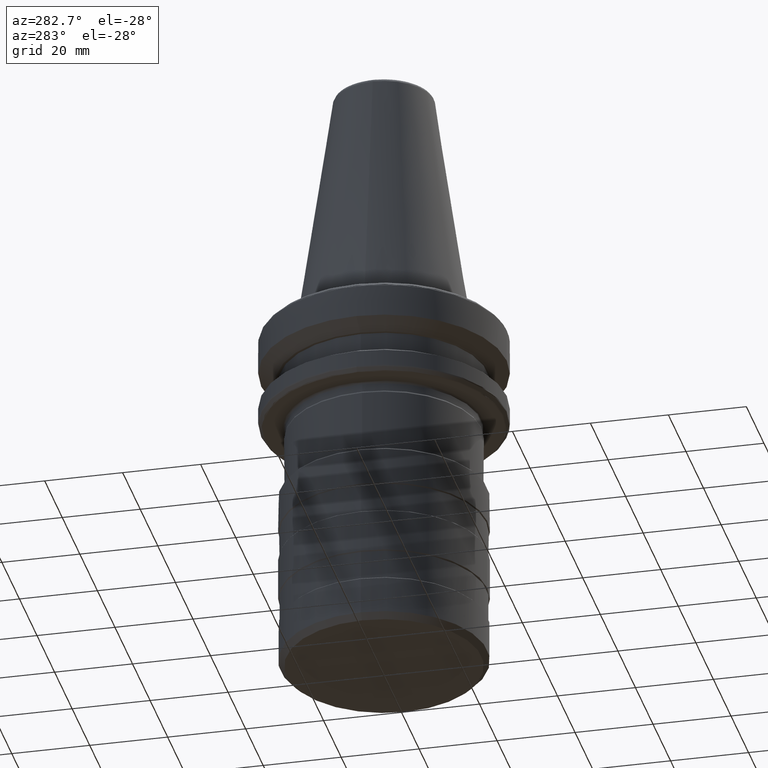
[diagram: clean part render]
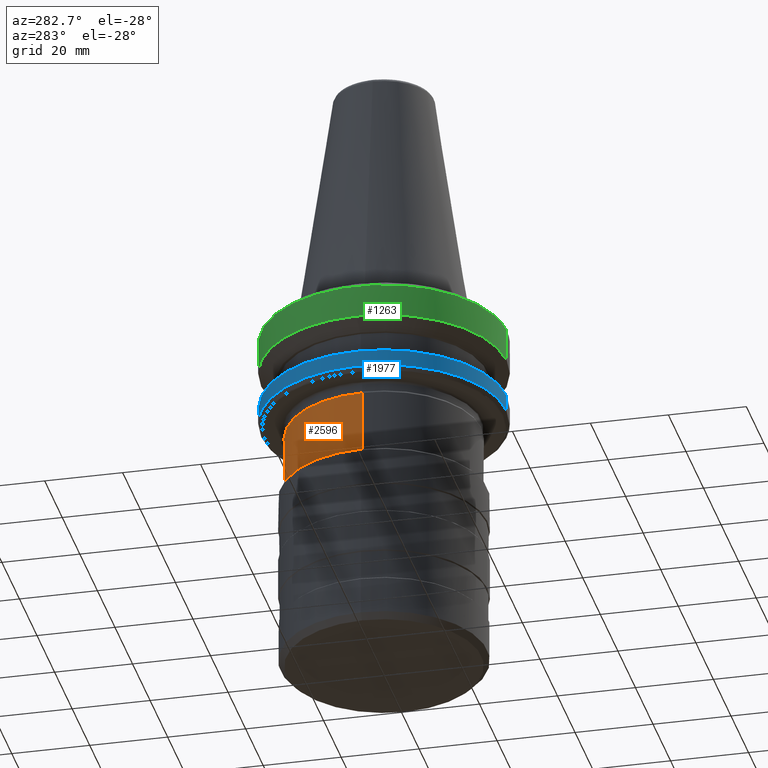
[diagram: same view with three faces highlighted in distinct colors, each labeled with its STEP entity id]
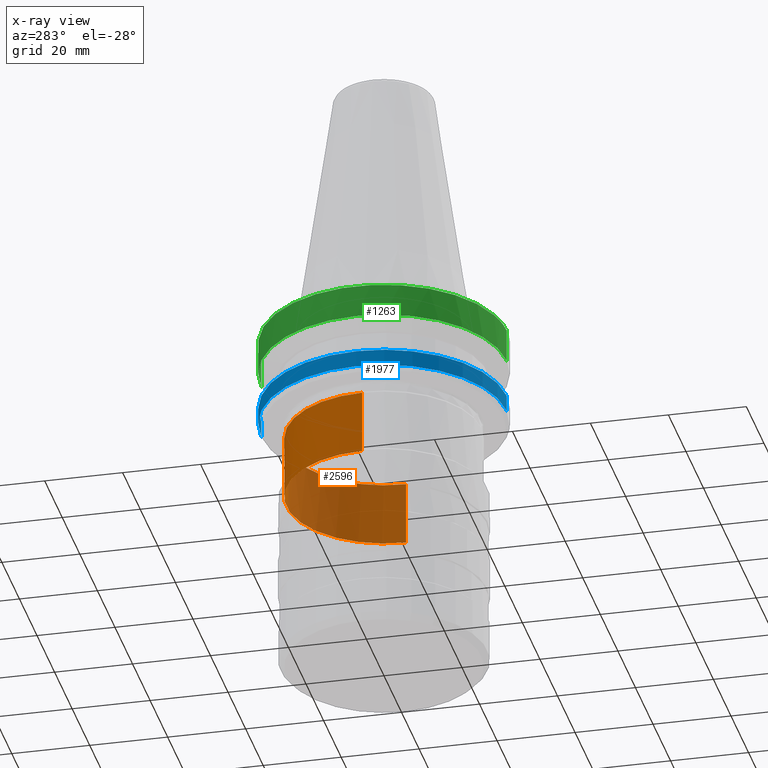
[diagram: x-ray of the same camera — body ghosted, the three highlighted faces saturated]
A machine part, auxiliary view with three faces highlighted in distinct colors.
The next image is the same camera in x-ray (body ghosted, the three faces saturated) — at least one of them is partly hidden behind the body in this view.
Their STEP definitions:

[orange] entity #2596 — the highlighted cylindrical surface (partial cylindrical patch) has radius 25 mm, axis along (0, 0, 1).
#31 = FACE_OUTER_BOUND ( 'NONE', #2016, .T. ) ;
#154 = AXIS2_PLACEMENT_3D ( 'NONE', #2777, #1375, #3063 ) ;
#248 = CARTESIAN_POINT ( 'NONE',  ( -25.00000000000000000, 3.061616997868383000E-015, -46.50000000000000000 ) ) ;
#292 = EDGE_CURVE ( 'NONE', #542, #1401, #1635, .T. ) ;
#347 = CIRCLE ( 'NONE', #154, 25.00000000000000400 ) ;
#421 = DIRECTION ( 'NONE',  ( -1.000000000000000000, -8.881784197001252300E-016, 0.0000000000000000000 ) ) ;
#423 = DIRECTION ( 'NONE',  ( -0.0000000000000000000, -0.0000000000000000000, 1.000000000000000000 ) ) ;
#426 = CARTESIAN_POINT ( 'NONE',  ( 0.0000000000000000000, 0.0000000000000000000, -30.00000000000000000 ) ) ;
#539 = AXIS2_PLACEMENT_3D ( 'NONE', #3037, #2125, #2666 ) ;
#542 = VERTEX_POINT ( 'NONE', #2483 ) ;
#556 = ORIENTED_EDGE ( 'NONE', *, *, #2383, .F. ) ;
#576 = CARTESIAN_POINT ( 'NONE',  ( 0.0000000000000000000, 25.00000000000000400, -30.00000000000000000 ) ) ;
#666 = ORIENTED_EDGE ( 'NONE', *, *, #2978, .F. ) ;
#728 = VERTEX_POINT ( 'NONE', #1129 ) ;
#844 = AXIS2_PLACEMENT_3D ( 'NONE', #426, #423, #421 ) ;
#975 = DIRECTION ( 'NONE',  ( 0.0000000000000000000, 0.0000000000000000000, 1.000000000000000000 ) ) ;
#981 = VECTOR ( 'NONE', #1184, 1000.000000000000000 ) ;
#1046 = AXIS2_PLACEMENT_3D ( 'NONE', #2565, #975, #2861 ) ;
#1129 = CARTESIAN_POINT ( 'NONE',  ( -25.00000000000000700, 3.061616997868383800E-015, -30.00000000000000000 ) ) ;
#1154 = VERTEX_POINT ( 'NONE', #576 ) ;
#1184 = DIRECTION ( 'NONE',  ( 0.0000000000000000000, 0.0000000000000000000, 1.000000000000000000 ) ) ;
#1206 = EDGE_CURVE ( 'NONE', #1154, #728, #1642, .T. ) ;
#1375 = DIRECTION ( 'NONE',  ( -0.0000000000000000000, -0.0000000000000000000, 1.000000000000000000 ) ) ;
#1401 = VERTEX_POINT ( 'NONE', #248 ) ;
#1517 = VERTEX_POINT ( 'NONE', #2209 ) ;
#1519 = ORIENTED_EDGE ( 'NONE', *, *, #1206, .F. ) ;
#1555 = ORIENTED_EDGE ( 'NONE', *, *, #2412, .T. ) ;
#1635 = CIRCLE ( 'NONE', #539, 25.00000000000000000 ) ;
#1642 = CIRCLE ( 'NONE', #844, 25.00000000000000400 ) ;
#1964 = LINE ( 'NONE', #2433, #2527 ) ;
#2016 = EDGE_LOOP ( 'NONE', ( #2345, #1555, #1519, #556, #666 ) ) ;
#2022 = CYLINDRICAL_SURFACE ( 'NONE', #1046, 25.00000000000000000 ) ;
#2125 = DIRECTION ( 'NONE',  ( 0.0000000000000000000, 0.0000000000000000000, 1.000000000000000000 ) ) ;
#2198 = LINE ( 'NONE', #2512, #981 ) ;
#2209 = CARTESIAN_POINT ( 'NONE',  ( 25.00000000000000700, 0.0000000000000000000, -30.00000000000000000 ) ) ;
#2345 = ORIENTED_EDGE ( 'NONE', *, *, #292, .T. ) ;
#2383 = EDGE_CURVE ( 'NONE', #1517, #1154, #347, .T. ) ;
#2412 = EDGE_CURVE ( 'NONE', #1401, #728, #2198, .T. ) ;
#2433 = CARTESIAN_POINT ( 'NONE',  ( 25.00000000000000000, 0.0000000000000000000, -46.50000000000000000 ) ) ;
#2483 = CARTESIAN_POINT ( 'NONE',  ( 25.00000000000000000, 0.0000000000000000000, -46.50000000000000000 ) ) ;
#2512 = CARTESIAN_POINT ( 'NONE',  ( -25.00000000000000000, 3.061616997868383000E-015, -46.50000000000000000 ) ) ;
#2527 = VECTOR ( 'NONE', #2726, 1000.000000000000000 ) ;
#2565 = CARTESIAN_POINT ( 'NONE',  ( 0.0000000000000000000, 0.0000000000000000000, -46.50000000000000000 ) ) ;
#2596 = ADVANCED_FACE ( 'NONE', ( #31 ), #2022, .T. ) ;
#2666 = DIRECTION ( 'NONE',  ( 1.000000000000000000, 0.0000000000000000000, 0.0000000000000000000 ) ) ;
#2726 = DIRECTION ( 'NONE',  ( 0.0000000000000000000, 0.0000000000000000000, 1.000000000000000000 ) ) ;
#2777 = CARTESIAN_POINT ( 'NONE',  ( 0.0000000000000000000, 0.0000000000000000000, -30.00000000000000000 ) ) ;
#2861 = DIRECTION ( 'NONE',  ( 1.000000000000000000, 0.0000000000000000000, 0.0000000000000000000 ) ) ;
#2978 = EDGE_CURVE ( 'NONE', #542, #1517, #1964, .T. ) ;
#3037 = CARTESIAN_POINT ( 'NONE',  ( 0.0000000000000000000, 0.0000000000000000000, -46.50000000000000000 ) ) ;
#3063 = DIRECTION ( 'NONE',  ( -1.000000000000000000, 0.0000000000000000000, 0.0000000000000000000 ) ) ;

[blue] entity #1977 — the highlighted cylindrical surface (partial cylindrical patch) has radius 31.5 mm, axis along (0, -0, 1).
#94 = AXIS2_PLACEMENT_3D ( 'NONE', #505, #2128, #734 ) ;
#99 = DIRECTION ( 'NONE',  ( 0.0000000000000000000, -5.507058653894625200E-017, 1.000000000000000000 ) ) ;
#104 = CYLINDRICAL_SURFACE ( 'NONE', #2450, 31.50000000000000000 ) ;
#165 = DIRECTION ( 'NONE',  ( 0.0000000000000000000, -1.000000000000000000, 0.0000000000000000000 ) ) ;
#185 = FACE_OUTER_BOUND ( 'NONE', #199, .T. ) ;
#199 = EDGE_LOOP ( 'NONE', ( #2286, #2180, #1988, #1911, #1398, #1323 ) ) ;
#302 = DIRECTION ( 'NONE',  ( 0.0000000000000000000, -1.000000000000000000, 0.0000000000000000000 ) ) ;
#303 = DIRECTION ( 'NONE',  ( 0.0000000000000000000, -5.507058653894625200E-017, 1.000000000000000000 ) ) ;
#310 = CARTESIAN_POINT ( 'NONE',  ( 0.0000000000000000000, -1.514377057461634400E-027, -25.83431457497250200 ) ) ;
#323 = VERTEX_POINT ( 'NONE', #2537 ) ;
#352 = CARTESIAN_POINT ( 'NONE',  ( 3.857637417314162700E-015, 31.50000000000000000, -25.83431457500000100 ) ) ;
#356 = VERTEX_POINT ( 'NONE', #1874 ) ;
#454 = VECTOR ( 'NONE', #469, 1000.000000000000000 ) ;
#469 = DIRECTION ( 'NONE',  ( 0.0000000000000000000, -5.507058653894625200E-017, 1.000000000000000000 ) ) ;
#481 = DIRECTION ( 'NONE',  ( 0.0000000000000000000, -5.507058653894625200E-017, 1.000000000000000000 ) ) ;
#484 = CARTESIAN_POINT ( 'NONE',  ( 0.0000000000000000000, -31.50000000000000000, -25.83431457500000100 ) ) ;
#505 = CARTESIAN_POINT ( 'NONE',  ( 0.0000000000000000000, 0.0000000000000000000, -21.59193430197490900 ) ) ;
#725 = CARTESIAN_POINT ( 'NONE',  ( 0.0000000000000000000, 0.0000000000000000000, -21.59193430197490900 ) ) ;
#734 = DIRECTION ( 'NONE',  ( -1.000000000000000000, 0.0000000000000000000, 0.0000000000000000000 ) ) ;
#776 = CIRCLE ( 'NONE', #1676, 31.50000000000000000 ) ;
#932 = CIRCLE ( 'NONE', #94, 31.50000000000604300 ) ;
#977 = DIRECTION ( 'NONE',  ( -1.000000000000000000, 0.0000000000000000000, 0.0000000000000000000 ) ) ;
#1076 = CARTESIAN_POINT ( 'NONE',  ( 3.857637417314902600E-015, 31.50000000000604300, -21.59193430197490900 ) ) ;
#1187 = EDGE_CURVE ( 'NONE', #323, #2606, #1208, .T. ) ;
#1208 = LINE ( 'NONE', #484, #454 ) ;
#1223 = AXIS2_PLACEMENT_3D ( 'NONE', #310, #303, #302 ) ;
#1299 = EDGE_CURVE ( 'NONE', #2335, #2103, #2903, .T. ) ;
#1323 = ORIENTED_EDGE ( 'NONE', *, *, #2046, .T. ) ;
#1369 = AXIS2_PLACEMENT_3D ( 'NONE', #725, #2307, #977 ) ;
#1398 = ORIENTED_EDGE ( 'NONE', *, *, #2094, .T. ) ;
#1459 = VECTOR ( 'NONE', #99, 1000.000000000000000 ) ;
#1610 = CARTESIAN_POINT ( 'NONE',  ( 0.0000000000000000000, 0.0000000000000000000, -25.83431457500000100 ) ) ;
#1676 = AXIS2_PLACEMENT_3D ( 'NONE', #1897, #481, #2105 ) ;
#1693 = CARTESIAN_POINT ( 'NONE',  ( -31.50000000000604300, -4.845556279573616900E-009, -25.83431457497250200 ) ) ;
#1874 = CARTESIAN_POINT ( 'NONE',  ( -31.50000000000604300, 0.0000000000000000000, -21.59193430197490900 ) ) ;
#1897 = CARTESIAN_POINT ( 'NONE',  ( 0.0000000000000000000, -1.601406927468414200E-027, -25.83431457497092200 ) ) ;
#1911 = ORIENTED_EDGE ( 'NONE', *, *, #1187, .T. ) ;
#1977 = ADVANCED_FACE ( 'NONE', ( #185 ), #104, .T. ) ;
#1988 = ORIENTED_EDGE ( 'NONE', *, *, #2493, .T. ) ;
#2032 = CARTESIAN_POINT ( 'NONE',  ( 3.857637417314162700E-015, 31.50000000000000000, -25.83431457497249900 ) ) ;
#2046 = EDGE_CURVE ( 'NONE', #356, #2268, #2964, .T. ) ;
#2067 = LINE ( 'NONE', #352, #1459 ) ;
#2094 = EDGE_CURVE ( 'NONE', #2606, #356, #932, .T. ) ;
#2103 = VERTEX_POINT ( 'NONE', #1693 ) ;
#2105 = DIRECTION ( 'NONE',  ( 0.0000000000000000000, -1.000000000000000000, 0.0000000000000000000 ) ) ;
#2126 = CARTESIAN_POINT ( 'NONE',  ( 0.0000000000000000000, -31.50000000000604300, -21.59193430197490900 ) ) ;
#2128 = DIRECTION ( 'NONE',  ( -0.0000000000000000000, -0.0000000000000000000, -1.000000000000000000 ) ) ;
#2180 = ORIENTED_EDGE ( 'NONE', *, *, #1299, .T. ) ;
#2268 = VERTEX_POINT ( 'NONE', #1076 ) ;
#2286 = ORIENTED_EDGE ( 'NONE', *, *, #2854, .F. ) ;
#2307 = DIRECTION ( 'NONE',  ( -0.0000000000000000000, -0.0000000000000000000, -1.000000000000000000 ) ) ;
#2335 = VERTEX_POINT ( 'NONE', #2032 ) ;
#2450 = AXIS2_PLACEMENT_3D ( 'NONE', #1610, #3043, #165 ) ;
#2493 = EDGE_CURVE ( 'NONE', #2103, #323, #776, .T. ) ;
#2537 = CARTESIAN_POINT ( 'NONE',  ( 0.0000000000000000000, -31.50000000000000000, -25.83431457497092200 ) ) ;
#2606 = VERTEX_POINT ( 'NONE', #2126 ) ;
#2854 = EDGE_CURVE ( 'NONE', #2335, #2268, #2067, .T. ) ;
#2903 = CIRCLE ( 'NONE', #1223, 31.50000000000000000 ) ;
#2964 = CIRCLE ( 'NONE', #1369, 31.50000000000604300 ) ;
#3043 = DIRECTION ( 'NONE',  ( 0.0000000000000000000, -5.507058653894625200E-017, 1.000000000000000000 ) ) ;

[green] entity #1263 — the highlighted cylindrical surface (partial cylindrical patch) has radius 31.5 mm, axis along (0, -0, 1).
#117 = AXIS2_PLACEMENT_3D ( 'NONE', #2686, #2685, #2681 ) ;
#130 = DIRECTION ( 'NONE',  ( -1.000000000000000000, 0.0000000000000000000, 0.0000000000000000000 ) ) ;
#136 = DIRECTION ( 'NONE',  ( -0.0000000000000000000, -0.0000000000000000000, -1.000000000000000000 ) ) ;
#140 = CARTESIAN_POINT ( 'NONE',  ( 0.0000000000000000000, 0.0000000000000000000, -11.61444037282179100 ) ) ;
#232 = VERTEX_POINT ( 'NONE', #2992 ) ;
#256 = CARTESIAN_POINT ( 'NONE',  ( 0.0000000000000000000, -31.50000000000017400, -11.61444037282179100 ) ) ;
#362 = VERTEX_POINT ( 'NONE', #2988 ) ;
#383 = CARTESIAN_POINT ( 'NONE',  ( 0.0000000000000000000, 0.0000000000000000000, -11.59985799400000100 ) ) ;
#387 = DIRECTION ( 'NONE',  ( 0.0000000000000000000, -1.000000000000000000, 0.0000000000000000000 ) ) ;
#393 = DIRECTION ( 'NONE',  ( 0.0000000000000000000, -2.753529326947312600E-017, 1.000000000000000000 ) ) ;
#509 = CARTESIAN_POINT ( 'NONE',  ( -31.50000000000017400, 3.857637417314184000E-015, -11.61444037282179100 ) ) ;
#613 = ORIENTED_EDGE ( 'NONE', *, *, #827, .T. ) ;
#773 = VERTEX_POINT ( 'NONE', #1077 ) ;
#798 = CIRCLE ( 'NONE', #2583, 31.50000000000017400 ) ;
#799 = ORIENTED_EDGE ( 'NONE', *, *, #1465, .F. ) ;
#827 = EDGE_CURVE ( 'NONE', #232, #2451, #2858, .T. ) ;
#867 = FACE_OUTER_BOUND ( 'NONE', #1302, .T. ) ;
#874 = DIRECTION ( 'NONE',  ( -0.0000000000000000000, -0.0000000000000000000, -1.000000000000000000 ) ) ;
#1024 = DIRECTION ( 'NONE',  ( -1.000000000000000000, 0.0000000000000000000, 0.0000000000000000000 ) ) ;
#1026 = CIRCLE ( 'NONE', #1125, 31.50000000000017400 ) ;
#1028 = DIRECTION ( 'NONE',  ( -0.0000000000000000000, -0.0000000000000000000, -1.000000000000000000 ) ) ;
#1030 = CARTESIAN_POINT ( 'NONE',  ( 0.0000000000000000000, 0.0000000000000000000, -3.165685425118122800 ) ) ;
#1049 = CARTESIAN_POINT ( 'NONE',  ( 0.0000000000000000000, -31.49999999998376400, -3.165685425118122800 ) ) ;
#1077 = CARTESIAN_POINT ( 'NONE',  ( -8.717453372912249400, -30.26972095494238600, -3.165685425118122800 ) ) ;
#1087 = ORIENTED_EDGE ( 'NONE', *, *, #3115, .F. ) ;
#1098 = CYLINDRICAL_SURFACE ( 'NONE', #1249, 31.50000000000000000 ) ;
#1125 = AXIS2_PLACEMENT_3D ( 'NONE', #140, #136, #130 ) ;
#1150 = VERTEX_POINT ( 'NONE', #509 ) ;
#1249 = AXIS2_PLACEMENT_3D ( 'NONE', #383, #393, #387 ) ;
#1263 = ADVANCED_FACE ( 'NONE', ( #867 ), #1098, .T. ) ;
#1302 = EDGE_LOOP ( 'NONE', ( #2378, #1697, #799, #3151, #3059, #1087, #613 ) ) ;
#1356 = VERTEX_POINT ( 'NONE', #256 ) ;
#1380 = VECTOR ( 'NONE', #2434, 1000.000000000000000 ) ;
#1402 = CARTESIAN_POINT ( 'NONE',  ( 3.857637417313168700E-015, 31.49999999998376400, -3.165685425118122800 ) ) ;
#1465 = EDGE_CURVE ( 'NONE', #1356, #1150, #1026, .T. ) ;
#1539 = EDGE_CURVE ( 'NONE', #1356, #1744, #2168, .T. ) ;
#1549 = EDGE_CURVE ( 'NONE', #362, #2451, #1922, .T. ) ;
#1697 = ORIENTED_EDGE ( 'NONE', *, *, #1920, .F. ) ;
#1744 = VERTEX_POINT ( 'NONE', #1049 ) ;
#1920 = EDGE_CURVE ( 'NONE', #1150, #362, #798, .T. ) ;
#1922 = LINE ( 'NONE', #1985, #1380 ) ;
#1985 = CARTESIAN_POINT ( 'NONE',  ( 3.857637417314162700E-015, 31.50000000000000000, -11.59985799400000100 ) ) ;
#2158 = DIRECTION ( 'NONE',  ( 0.0000000000000000000, -2.753529326947312600E-017, 1.000000000000000000 ) ) ;
#2164 = CARTESIAN_POINT ( 'NONE',  ( 0.0000000000000000000, -31.50000000000000000, -11.59985799400000100 ) ) ;
#2168 = LINE ( 'NONE', #2164, #2545 ) ;
#2238 = CARTESIAN_POINT ( 'NONE',  ( 0.0000000000000000000, 0.0000000000000000000, -11.61444037282179100 ) ) ;
#2375 = CIRCLE ( 'NONE', #117, 31.49999999998376400 ) ;
#2378 = ORIENTED_EDGE ( 'NONE', *, *, #1549, .F. ) ;
#2434 = DIRECTION ( 'NONE',  ( 0.0000000000000000000, -2.753529326947312600E-017, 1.000000000000000000 ) ) ;
#2439 = DIRECTION ( 'NONE',  ( -1.000000000000000000, 0.0000000000000000000, 0.0000000000000000000 ) ) ;
#2451 = VERTEX_POINT ( 'NONE', #1402 ) ;
#2545 = VECTOR ( 'NONE', #2158, 1000.000000000000000 ) ;
#2583 = AXIS2_PLACEMENT_3D ( 'NONE', #2238, #874, #2439 ) ;
#2615 = CIRCLE ( 'NONE', #3103, 31.50000000031699800 ) ;
#2659 = DIRECTION ( 'NONE',  ( 1.000000000000000000, 0.0000000000000000000, -2.753529326919603000E-017 ) ) ;
#2661 = DIRECTION ( 'NONE',  ( 2.237416295132530100E-017, 0.0000000000000000000, 1.000000000000000000 ) ) ;
#2665 = CARTESIAN_POINT ( 'NONE',  ( 1.589006703994755300E-012, -4.510281037539698400E-014, -3.165685425816283000 ) ) ;
#2681 = DIRECTION ( 'NONE',  ( -1.000000000000000000, 0.0000000000000000000, 0.0000000000000000000 ) ) ;
#2685 = DIRECTION ( 'NONE',  ( -0.0000000000000000000, -0.0000000000000000000, -1.000000000000000000 ) ) ;
#2686 = CARTESIAN_POINT ( 'NONE',  ( 0.0000000000000000000, 0.0000000000000000000, -3.165685425118122800 ) ) ;
#2732 = AXIS2_PLACEMENT_3D ( 'NONE', #1030, #1028, #1024 ) ;
#2858 = CIRCLE ( 'NONE', #2732, 31.49999999998376400 ) ;
#2988 = CARTESIAN_POINT ( 'NONE',  ( 3.857637417314184000E-015, 31.50000000000017400, -11.61444037282179100 ) ) ;
#2992 = CARTESIAN_POINT ( 'NONE',  ( -8.717453372912249400, 30.26972095494238600, -3.165685425118122800 ) ) ;
#3059 = ORIENTED_EDGE ( 'NONE', *, *, #3099, .T. ) ;
#3099 = EDGE_CURVE ( 'NONE', #1744, #773, #2375, .T. ) ;
#3103 = AXIS2_PLACEMENT_3D ( 'NONE', #2665, #2661, #2659 ) ;
#3115 = EDGE_CURVE ( 'NONE', #232, #773, #2615, .T. ) ;
#3151 = ORIENTED_EDGE ( 'NONE', *, *, #1539, .T. ) ;